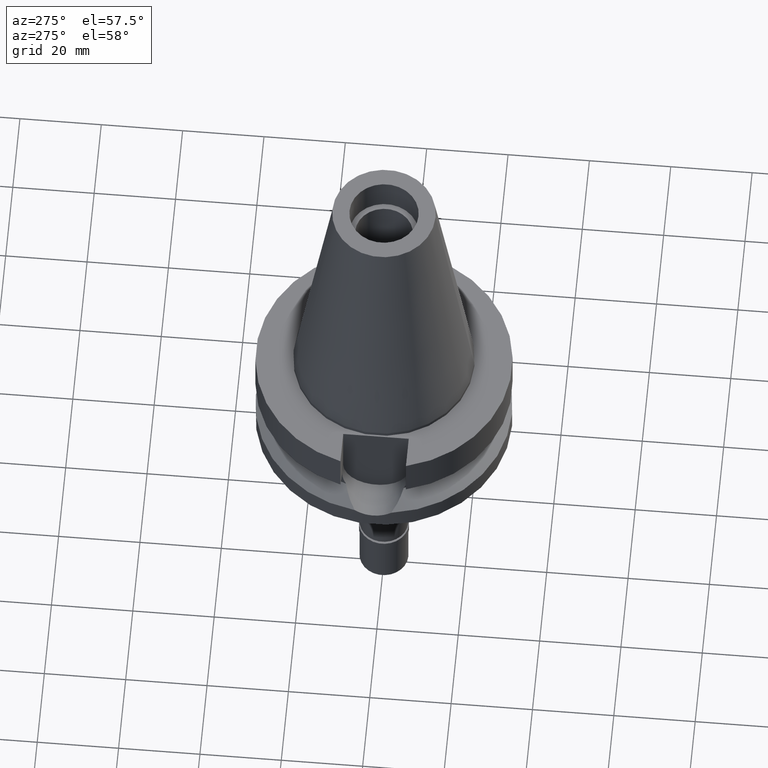
[diagram: clean part render]
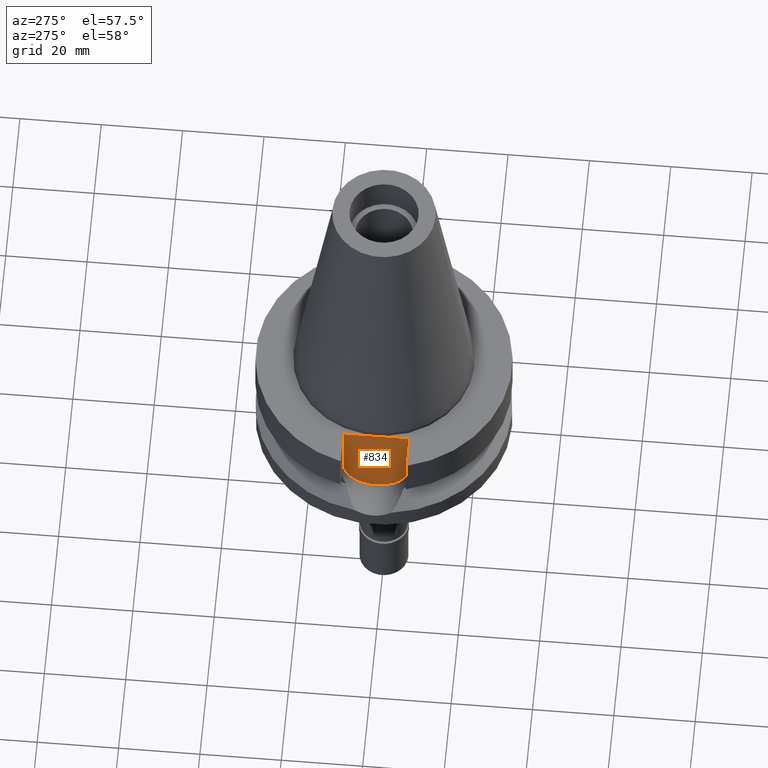
[diagram: same view with one face highlighted and labeled with its STEP entity id]
A machine part, auxiliary view. The second image highlights one B-rep face of the part: STEP entity #834.
In plain terms, the highlighted planar face has unit normal (-1, 0, 0).
Its self-contained STEP definition (entity closure, byte-faithful):
#215 = FACE_OUTER_BOUND ( 'NONE', #2916, .T. ) ;
#256 = DIRECTION ( 'NONE',  ( 1.000000000000000000, 0.0000000000000000000, 0.0000000000000000000 ) ) ;
#257 = CARTESIAN_POINT ( 'NONE',  ( -22.50000000000000000, 8.050000000000000711, -1.000000000000000000 ) ) ;
#368 = AXIS2_PLACEMENT_3D ( 'NONE', #2129, #256, #2597 ) ;
#405 = EDGE_CURVE ( 'NONE', #1855, #2742, #2948, .T. ) ;
#531 = CARTESIAN_POINT ( 'NONE',  ( -22.50000000000000000, 8.050000000000000711, -14.94999999999999929 ) ) ;
#576 = PLANE ( 'NONE',  #1556 ) ;
#658 = CARTESIAN_POINT ( 'NONE',  ( -22.50000000000000000, 8.050000000000000711, -14.94999999999999929 ) ) ;
#725 = DIRECTION ( 'NONE',  ( 0.0000000000000000000, 0.0000000000000000000, -1.000000000000000000 ) ) ;
#754 = LINE ( 'NONE', #2567, #954 ) ;
#797 = VERTEX_POINT ( 'NONE', #2139 ) ;
#834 = ADVANCED_FACE ( 'NONE', ( #215 ), #576, .T. ) ;
#888 = ORIENTED_EDGE ( 'NONE', *, *, #1868, .F. ) ;
#954 = VECTOR ( 'NONE', #725, 1000.000000000000000 ) ;
#1094 = CARTESIAN_POINT ( 'NONE',  ( -22.50000000000000000, -8.050000000000000711, -1.000000000000000000 ) ) ;
#1150 = LINE ( 'NONE', #2314, #2062 ) ;
#1218 = VERTEX_POINT ( 'NONE', #1094 ) ;
#1336 = DIRECTION ( 'NONE',  ( 0.0000000000000000000, 0.0000000000000000000, 1.000000000000000000 ) ) ;
#1391 = EDGE_CURVE ( 'NONE', #797, #1855, #1512, .T. ) ;
#1512 = CIRCLE ( 'NONE', #368, 8.050000000000000711 ) ;
#1556 = AXIS2_PLACEMENT_3D ( 'NONE', #1652, #2756, #1644 ) ;
#1600 = VECTOR ( 'NONE', #1336, 1000.000000000000000 ) ;
#1619 = ORIENTED_EDGE ( 'NONE', *, *, #1391, .F. ) ;
#1644 = DIRECTION ( 'NONE',  ( 0.0000000000000000000, 0.0000000000000000000, 1.000000000000000000 ) ) ;
#1652 = CARTESIAN_POINT ( 'NONE',  ( -22.50000000000000000, 2.173748068486999793E-14, 0.0000000000000000000 ) ) ;
#1855 = VERTEX_POINT ( 'NONE', #531 ) ;
#1868 = EDGE_CURVE ( 'NONE', #1218, #797, #754, .T. ) ;
#2049 = ORIENTED_EDGE ( 'NONE', *, *, #2781, .T. ) ;
#2062 = VECTOR ( 'NONE', #2706, 1000.000000000000000 ) ;
#2129 = CARTESIAN_POINT ( 'NONE',  ( -22.50000000000000000, 1.807578675540999863E-14, -14.94999999999999929 ) ) ;
#2139 = CARTESIAN_POINT ( 'NONE',  ( -22.50000000000000000, -8.050000000000000711, -14.94999999999999929 ) ) ;
#2314 = CARTESIAN_POINT ( 'NONE',  ( -22.50000000000000000, -8.050000000000000711, -1.000000000000000000 ) ) ;
#2448 = ORIENTED_EDGE ( 'NONE', *, *, #405, .F. ) ;
#2567 = CARTESIAN_POINT ( 'NONE',  ( -22.50000000000000000, -8.050000000000000711, -1.000000000000000000 ) ) ;
#2597 = DIRECTION ( 'NONE',  ( 0.0000000000000000000, 0.0000000000000000000, -1.000000000000000000 ) ) ;
#2706 = DIRECTION ( 'NONE',  ( 0.0000000000000000000, 1.000000000000000000, 0.0000000000000000000 ) ) ;
#2742 = VERTEX_POINT ( 'NONE', #257 ) ;
#2756 = DIRECTION ( 'NONE',  ( -1.000000000000000000, 0.0000000000000000000, 0.0000000000000000000 ) ) ;
#2781 = EDGE_CURVE ( 'NONE', #1218, #2742, #1150, .T. ) ;
#2916 = EDGE_LOOP ( 'NONE', ( #2448, #1619, #888, #2049 ) ) ;
#2948 = LINE ( 'NONE', #658, #1600 ) ;